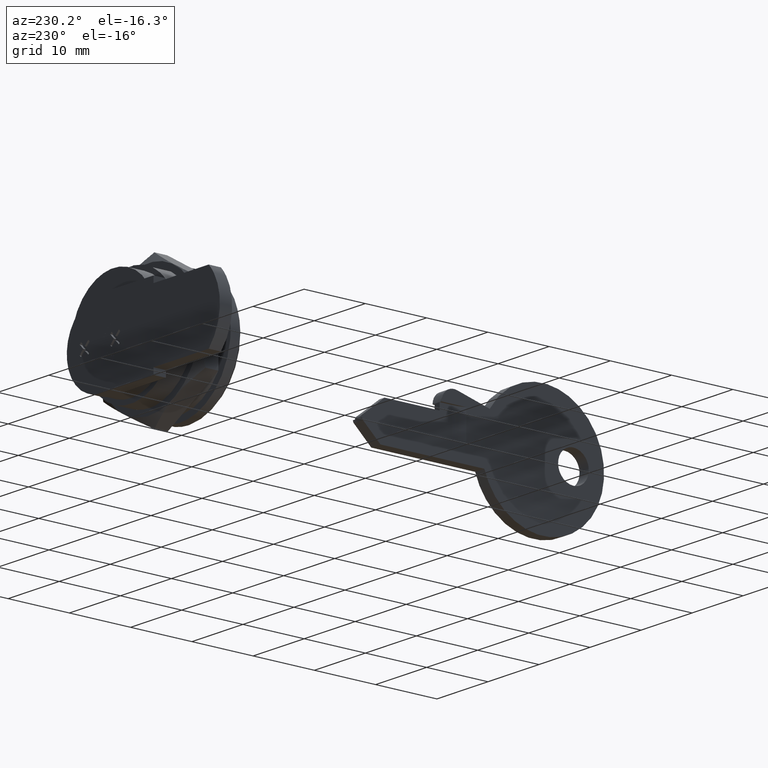
[diagram: clean part render]
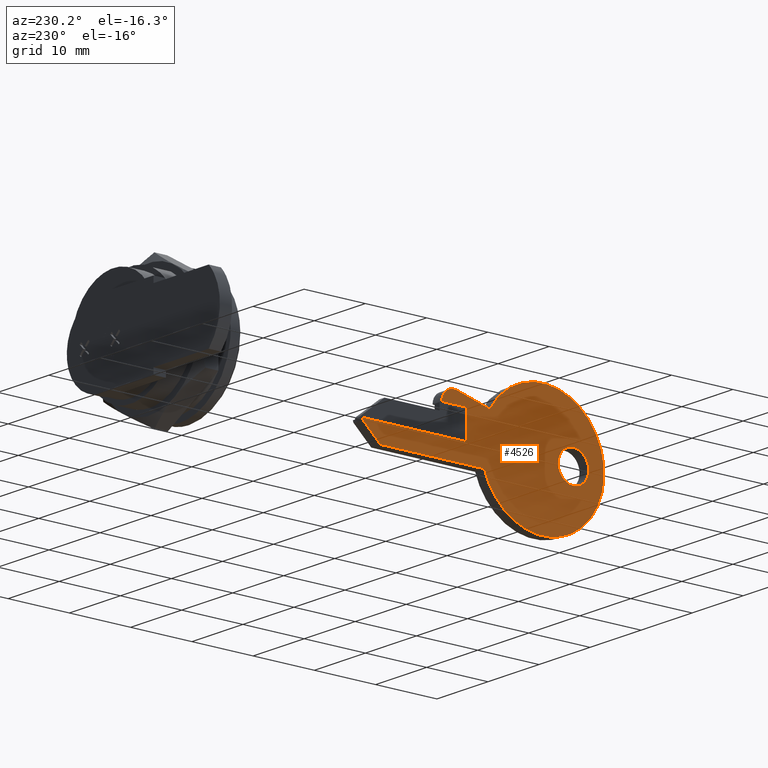
[diagram: same view with one face highlighted and labeled with its STEP entity id]
A machine part, auxiliary view. The second image highlights one B-rep face of the part: STEP entity #4526.
In plain terms, the highlighted face is a freeform B-spline surface patch.
Its self-contained STEP definition (entity closure, byte-faithful):
#3762=CARTESIAN_POINT('',(-64.037793334322387,0.900000000000012,-3.803852260547727));
#3763=VERTEX_POINT('',#3762);
#3769=CARTESIAN_POINT('',(-61.545499999999997,0.900000000000012,-1.500000000000000));
#3770=VERTEX_POINT('',#3769);
#3771=CARTESIAN_POINT('',(-61.545499999999997,0.900000000000012,-1.500000000000000));
#3772=CARTESIAN_POINT('',(-63.856476228898742,0.900000000000012,-1.500000000000001));
#3773=CARTESIAN_POINT('',(-64.037793334322373,0.900000000000012,-3.803852260547727));
#3781=(BOUNDED_CURVE()B_SPLINE_CURVE(2,(#3771,#3772,#3773),.UNSPECIFIED.,.F.,.U.)B_SPLINE_CURVE_WITH_KNOTS((3,3),(0.0,0.236331300614518),.UNSPECIFIED.)CURVE()GEOMETRIC_REPRESENTATION_ITEM()RATIONAL_B_SPLINE_CURVE((1.0,0.723120658626577,0.969723356133731))REPRESENTATION_ITEM(''));
#3782=EDGE_CURVE('',#3770,#3763,#3781,.T.);
#3784=CARTESIAN_POINT('',(-59.053206665677621,0.900000000000012,-4.196147739452273));
#3785=VERTEX_POINT('',#3784);
#3786=CARTESIAN_POINT('',(-59.053206665677621,0.900000000000012,-4.196147739452273));
#3787=CARTESIAN_POINT('',(-59.045500000000004,0.900000000000012,-4.098225267652449));
#3788=CARTESIAN_POINT('',(-59.045499999999997,0.900000000000012,-4.0));
#3789=CARTESIAN_POINT('',(-59.045500000000004,0.900000000000012,-1.500000000000000));
#3790=CARTESIAN_POINT('',(-61.545499999999997,0.900000000000012,-1.500000000000000));
#3798=(BOUNDED_CURVE()B_SPLINE_CURVE(2,(#3786,#3787,#3788,#3789,#3790),.UNSPECIFIED.,.F.,.U.)B_SPLINE_CURVE_WITH_KNOTS((3,2,3),(0.736331300614518,0.750000000000000,1.0),.UNSPECIFIED.)CURVE()GEOMETRIC_REPRESENTATION_ITEM()RATIONAL_B_SPLINE_CURVE((0.969723356133731,0.983986122559971,1.0,0.707106781186548,1.0))REPRESENTATION_ITEM(''));
#3799=EDGE_CURVE('',#3785,#3770,#3798,.T.);
#3875=CARTESIAN_POINT('',(-61.545499999999997,0.900000000000012,-6.500000000000001));
#3876=VERTEX_POINT('',#3875);
#3877=CARTESIAN_POINT('',(-61.545499999999997,0.900000000000012,-6.500000000000001));
#3878=CARTESIAN_POINT('',(-59.234523771101273,0.900000000000012,-6.500000000000002));
#3879=CARTESIAN_POINT('',(-59.053206665677621,0.900000000000012,-4.196147739452273));
#3887=(BOUNDED_CURVE()B_SPLINE_CURVE(2,(#3877,#3878,#3879),.UNSPECIFIED.,.F.,.U.)B_SPLINE_CURVE_WITH_KNOTS((3,3),(0.500000000000000,0.736331300614518),.UNSPECIFIED.)CURVE()GEOMETRIC_REPRESENTATION_ITEM()RATIONAL_B_SPLINE_CURVE((1.0,0.723120658626576,0.969723356133732))REPRESENTATION_ITEM(''));
#3888=EDGE_CURVE('',#3876,#3785,#3887,.T.);
#3890=CARTESIAN_POINT('',(-64.037793334322387,0.900000000000012,-3.803852260547727));
#3891=CARTESIAN_POINT('',(-64.045500000000018,0.900000000000012,-3.901774732347550));
#3892=CARTESIAN_POINT('',(-64.045500000000004,0.900000000000012,-4.0));
#3893=CARTESIAN_POINT('',(-64.045500000000004,0.900000000000012,-6.500000000000003));
#3894=CARTESIAN_POINT('',(-61.545499999999997,0.900000000000012,-6.500000000000001));
#3902=(BOUNDED_CURVE()B_SPLINE_CURVE(2,(#3890,#3891,#3892,#3893,#3894),.UNSPECIFIED.,.F.,.U.)B_SPLINE_CURVE_WITH_KNOTS((3,2,3),(0.236331300614518,0.250000000000000,0.500000000000000),.UNSPECIFIED.)CURVE()GEOMETRIC_REPRESENTATION_ITEM()RATIONAL_B_SPLINE_CURVE((0.969723356133731,0.983986122559971,1.0,0.707106781186548,1.0))REPRESENTATION_ITEM(''));
#3903=EDGE_CURVE('',#3763,#3876,#3902,.T.);
#3925=CARTESIAN_POINT('',(-44.045499999999997,0.900000000000012,0.500000000000000));
#3926=VERTEX_POINT('',#3925);
#3947=CARTESIAN_POINT('',(-44.045499999999997,0.900000000000012,-4.0));
#3948=VERTEX_POINT('',#3947);
#3962=CARTESIAN_POINT('',(-44.045499999999997,0.900000000000012,0.500000000000000));
#3963=CARTESIAN_POINT('',(-44.045499999999997,0.900000000000012,-4.0));
#3964=QUASI_UNIFORM_CURVE('',1,(#3962,#3963),.UNSPECIFIED.,.F.,.U.);
#3965=EDGE_CURVE('',#3926,#3948,#3964,.T.);
#4044=CARTESIAN_POINT('',(-40.045499999999997,0.900000000000012,0.500000000000000));
#4045=VERTEX_POINT('',#4044);
#4046=CARTESIAN_POINT('',(-40.045499999999997,0.900000000000012,0.500000000000000));
#4047=CARTESIAN_POINT('',(-44.045499999999997,0.900000000000012,0.500000000000000));
#4048=QUASI_UNIFORM_CURVE('',1,(#4046,#4047),.UNSPECIFIED.,.F.,.U.);
#4049=EDGE_CURVE('',#4045,#3926,#4048,.T.);
#4064=CARTESIAN_POINT('',(-27.045500000000001,0.900000000000012,-4.0));
#4065=VERTEX_POINT('',#4064);
#4066=CARTESIAN_POINT('',(-44.045499999999997,0.900000000000012,-4.0));
#4067=CARTESIAN_POINT('',(-27.045500000000001,0.900000000000012,-4.0));
#4068=QUASI_UNIFORM_CURVE('',1,(#4066,#4067),.UNSPECIFIED.,.F.,.U.);
#4069=EDGE_CURVE('',#3948,#4065,#4068,.T.);
#4247=CARTESIAN_POINT('',(-42.565100000000001,0.900000000000012,2.431999999999905));
#4248=VERTEX_POINT('',#4247);
#4249=CARTESIAN_POINT('',(-40.045499999999997,0.900000000000012,0.500000000000000));
#4250=CARTESIAN_POINT('',(-40.045052021240664,0.900000000000012,1.487188744467515));
#4251=CARTESIAN_POINT('',(-40.828445327394377,0.900000000000012,2.087885627896954));
#4252=CARTESIAN_POINT('',(-41.611838633548125,0.900000000000012,2.688582511326392));
#4253=CARTESIAN_POINT('',(-42.565099999999987,0.900000000000012,2.431999999999874));
#4261=(BOUNDED_CURVE()B_SPLINE_CURVE(2,(#4249,#4250,#4251,#4252,#4253),.UNSPECIFIED.,.F.,.U.)B_SPLINE_CURVE_WITH_KNOTS((3,2,3),(0.0,0.500000000000000,1.0),.UNSPECIFIED.)CURVE()GEOMETRIC_REPRESENTATION_ITEM()RATIONAL_B_SPLINE_CURVE((1.0,0.896697328774785,1.0,0.896697328774785,1.0))REPRESENTATION_ITEM(''));
#4262=EDGE_CURVE('',#4045,#4248,#4261,.T.);
#4301=CARTESIAN_POINT('',(-30.045500000000001,0.900000000000012,-7.0));
#4302=VERTEX_POINT('',#4301);
#4303=CARTESIAN_POINT('',(-27.205534424963101,0.900000000000012,-4.366637979197325));
#4304=VERTEX_POINT('',#4303);
#4305=CARTESIAN_POINT('',(-30.045500000000001,0.900000000000012,-7.0));
#4306=CARTESIAN_POINT('',(-27.205534424963101,0.900000000000012,-4.366637979197325));
#4307=QUASI_UNIFORM_CURVE('',1,(#4305,#4306),.UNSPECIFIED.,.F.,.U.);
#4308=EDGE_CURVE('',#4302,#4304,#4307,.T.);
#4337=CARTESIAN_POINT('',(-47.006107985830397,0.900000000000012,-7.0));
#4338=VERTEX_POINT('',#4337);
#4339=CARTESIAN_POINT('',(-47.006107985830397,0.900000000000012,-7.0));
#4340=CARTESIAN_POINT('',(-30.045500000000001,0.900000000000012,-7.0));
#4341=QUASI_UNIFORM_CURVE('',1,(#4339,#4340),.UNSPECIFIED.,.F.,.U.);
#4342=EDGE_CURVE('',#4338,#4302,#4341,.T.);
#4386=CARTESIAN_POINT('',(-47.885253230244800,0.900000000000012,1.000012588678852));
#4387=VERTEX_POINT('',#4386);
#4388=CARTESIAN_POINT('',(-47.885253230244892,0.900000000000012,1.000012588678790));
#4389=CARTESIAN_POINT('',(-51.943987973449488,0.900000000000012,8.029923779046071));
#4390=CARTESIAN_POINT('',(-59.658179835192833,0.900000000000012,5.503221782300146));
#4391=CARTESIAN_POINT('',(-67.372371696936185,0.900000000000012,2.976519785554221));
#4392=CARTESIAN_POINT('',(-66.485659119505456,0.900000000000012,-5.092353733418140));
#4393=CARTESIAN_POINT('',(-65.598946542074728,0.900000000000012,-13.161227252390496));
#4394=CARTESIAN_POINT('',(-57.520144621275243,0.900000000000012,-13.952390057781059));
#4395=CARTESIAN_POINT('',(-49.441342700475730,0.900000000000012,-14.743552863171628));
#4396=CARTESIAN_POINT('',(-47.006107985830532,0.900000000000012,-6.999999999999972));
#4404=(BOUNDED_CURVE()B_SPLINE_CURVE(2,(#4388,#4389,#4390,#4391,#4392,#4393,#4394,#4395,#4396),.UNSPECIFIED.,.F.,.U.)B_SPLINE_CURVE_WITH_KNOTS((3,2,2,2,3),(0.0,0.250000000000000,0.500000000000000,0.750000000000000,1.0),.UNSPECIFIED.)CURVE()GEOMETRIC_REPRESENTATION_ITEM()RATIONAL_B_SPLINE_CURVE((1.0,0.776400840598774,1.0,0.776400840598774,1.0,0.776400840598774,1.0,0.776400840598774,1.0))REPRESENTATION_ITEM(''));
#4405=EDGE_CURVE('',#4387,#4338,#4404,.T.);
#4442=CARTESIAN_POINT('',(-42.565100000000001,0.900000000000012,2.431999999999905));
#4443=CARTESIAN_POINT('',(-47.885253230244800,0.900000000000012,1.000012588678852));
#4444=QUASI_UNIFORM_CURVE('',1,(#4442,#4443),.UNSPECIFIED.,.F.,.U.);
#4445=EDGE_CURVE('',#4248,#4387,#4444,.T.);
#4492=CARTESIAN_POINT('',(-68.491043052529349,0.900000000000000,6.988925590824182));
#4493=CARTESIAN_POINT('',(-25.073781432697618,0.900000000000000,6.988925590824182));
#4494=CARTESIAN_POINT('',(-68.491043052529349,0.900000000000000,-14.998284906440601));
#4495=CARTESIAN_POINT('',(-25.073781432697618,0.900000000000000,-14.998284906440601));
#4496=B_SPLINE_SURFACE_WITH_KNOTS('',1,1,((#4492,#4494),(#4493,#4495)),.UNSPECIFIED.,.F.,.F.,.U.,(2,2),(2,2),(0.0,43.417261619831727),(0.0,21.987210497264780),.UNSPECIFIED.);
#4497=ORIENTED_EDGE('',*,*,#4049,.T.);
#4498=ORIENTED_EDGE('',*,*,#3965,.T.);
#4499=ORIENTED_EDGE('',*,*,#4069,.T.);
#4500=CARTESIAN_POINT('',(-27.205534424963151,0.900000000000012,-4.366637979197275));
#4501=CARTESIAN_POINT('',(-27.045499999999997,0.900000000000012,-4.218245836551808));
#4502=CARTESIAN_POINT('',(-27.045500000000001,0.900000000000012,-4.0));
#4510=(BOUNDED_CURVE()B_SPLINE_CURVE(2,(#4500,#4501,#4502),.UNSPECIFIED.,.F.,.U.)CURVE()GEOMETRIC_REPRESENTATION_ITEM()QUASI_UNIFORM_CURVE()RATIONAL_B_SPLINE_CURVE((1.0,0.916496358441677,1.0))REPRESENTATION_ITEM(''));
#4511=EDGE_CURVE('',#4304,#4065,#4510,.T.);
#4512=ORIENTED_EDGE('',*,*,#4511,.F.);
#4513=ORIENTED_EDGE('',*,*,#4308,.F.);
#4514=ORIENTED_EDGE('',*,*,#4342,.F.);
#4515=ORIENTED_EDGE('',*,*,#4405,.F.);
#4516=ORIENTED_EDGE('',*,*,#4445,.F.);
#4517=ORIENTED_EDGE('',*,*,#4262,.F.);
#4518=EDGE_LOOP('',(#4497,#4498,#4499,#4512,#4513,#4514,#4515,#4516,#4517));
#4519=FACE_OUTER_BOUND('',#4518,.T.);
#4520=ORIENTED_EDGE('',*,*,#3888,.T.);
#4521=ORIENTED_EDGE('',*,*,#3799,.T.);
#4522=ORIENTED_EDGE('',*,*,#3782,.T.);
#4523=ORIENTED_EDGE('',*,*,#3903,.T.);
#4524=EDGE_LOOP('',(#4520,#4521,#4522,#4523));
#4525=FACE_BOUND('',#4524,.T.);
#4526=ADVANCED_FACE('',(#4519,#4525),#4496,.T.);